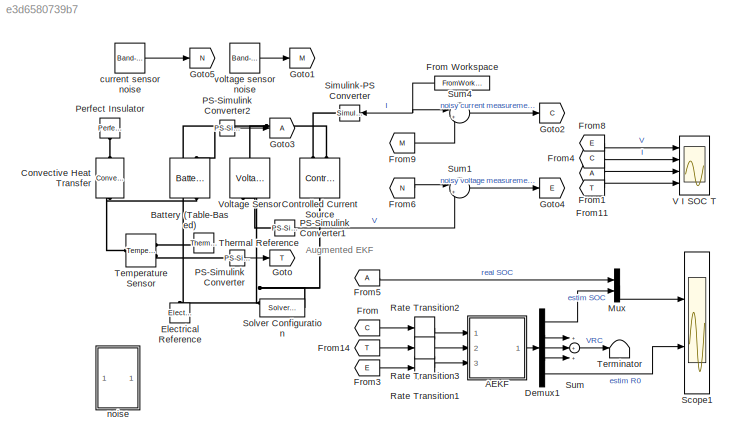
MODEL slx_e3d6580739b7
KIND model
CONFIG AbsTol = 1e-3
CONFIG EnableMultiTasking = on
CONFIG FixedStep = auto
CONFIG MaxStep = auto
CONFIG MinStep = auto
CONFIG PreLoadFcn = sohEstimation_ini
CONFIG RelTol = 1e-3
CONFIG SampleTimeConstraint = Unconstrained
CONFIG Solver = VariableStepAuto
CONFIG SolverName = VariableStepAuto
CONFIG StartTime = 0.0
CONFIG StopTime = tcyc(end)
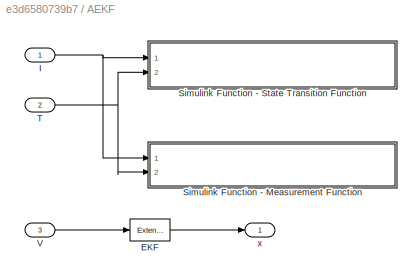
BLOCK [SubSystem] AEKF
  Ports = [3, 1]
  RequestExecContextInheritance = off
BLOCK [Reference] AEKF/EKF  REF=sharedTrackingLibrary/Extended Kalman Filter
  Ports = [1, 1]
  SourceBlock = sharedTrackingLibrary/Extended Kalman Filter
  SourceProductName = The database <userpath>\AppData\Roaming\MathWorks\MATLAB\R2017b\slblocks_master.db is locked, or a table in the database is locked. (database is locked)
  SourceType = Extended Kalman Filter
BLOCK [Inport] AEKF/I
  IconDisplay = Port number
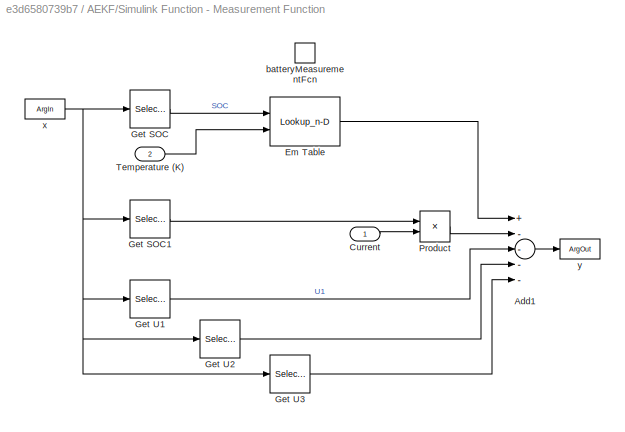
BLOCK [SubSystem] AEKF/Simulink Function - Measurement Function
  Ports = [2, 0, 0, 1]
  RequestExecContextInheritance = off
  TreatAsAtomicUnit = on
BLOCK [Sum] AEKF/Simulink Function - Measurement Function/Add1
  InputSameDT = off
  Inputs = +----
  OutDataTypeStr = Inherit: Inherit via internal rule
  Ports = [5, 1]
  SaturateOnIntegerOverflow = off
BLOCK [Inport] AEKF/Simulink Function - Measurement Function/Current
  IconDisplay = Port number
BLOCK [Lookup_n-D] AEKF/Simulink Function - Measurement Function/Em Table
  BreakpointsForDimension1 = Battery.SOC_LUT
  BreakpointsForDimension2 = Battery.Temperature_LUT
  InternalRulePriority = Speed
  Ports = [2, 1]
  RndMeth = Simplest
  Table = Battery.Em_LUT
BLOCK [Selector] AEKF/Simulink Function - Measurement Function/Get SOC
  IndexOptions = Index vector (dialog)
  Indices = [1]
  InputPortWidth = 5
  OutputSizes = 1
  Ports = [1, 1]
BLOCK [Selector] AEKF/Simulink Function - Measurement Function/Get SOC1
  IndexOptions = Index vector (dialog)
  Indices = [5]
  InputPortWidth = 5
  OutputSizes = 1
  Ports = [1, 1]
BLOCK [Selector] AEKF/Simulink Function - Measurement Function/Get U1
  IndexOptions = Index vector (dialog)
  Indices = 2
  InputPortWidth = 5
  OutputSizes = 1
  Ports = [1, 1]
BLOCK [Selector] AEKF/Simulink Function - Measurement Function/Get U2
  IndexOptions = Index vector (dialog)
  Indices = 3
  InputPortWidth = 5
  OutputSizes = 1
  Ports = [1, 1]
BLOCK [Selector] AEKF/Simulink Function - Measurement Function/Get U3
  IndexOptions = Index vector (dialog)
  Indices = 4
  InputPortWidth = 5
  OutputSizes = 1
  Ports = [1, 1]
BLOCK [Product] AEKF/Simulink Function - Measurement Function/Product
  InputSameDT = off
  OutDataTypeStr = Inherit: Inherit via internal rule
  Ports = [2, 1]
  RndMeth = Floor
  SaturateOnIntegerOverflow = off
BLOCK [Inport] AEKF/Simulink Function - Measurement Function/Temperature (K)
  IconDisplay = Port number
  Port = 2
BLOCK [TriggerPort] AEKF/Simulink Function - Measurement Function/batteryMeasurementFcn
  FunctionName = batteryMeasurementFcn
  IsSimulinkFunction = on
  Ports = []
  StatesWhenEnabling = held
  TriggerType = function-call
  VariantControl = Variant
BLOCK [ArgIn] AEKF/Simulink Function - Measurement Function/x
  ArgumentName = x
  DisableCoverage = on
  PortDimensions = 5
BLOCK [ArgOut] AEKF/Simulink Function - Measurement Function/y
  ArgumentName = y
  DisableCoverage = on
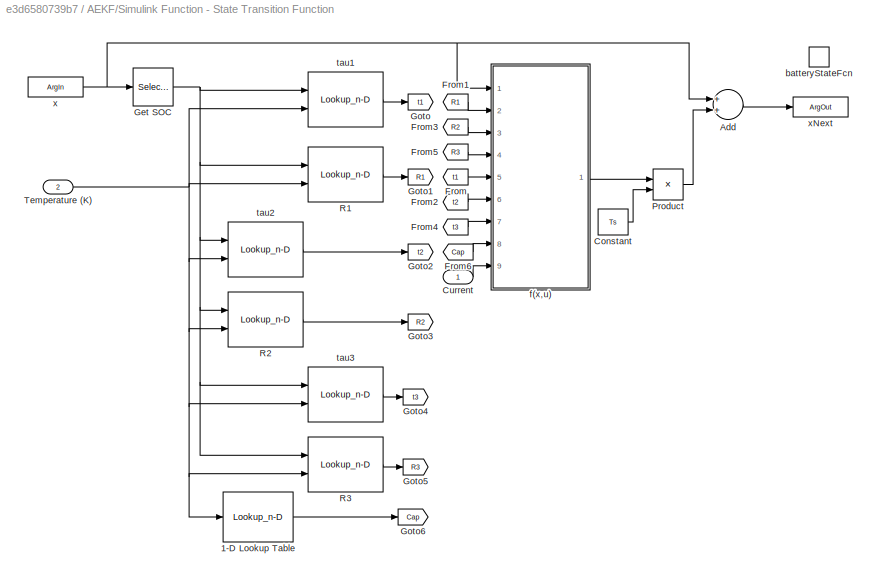
BLOCK [SubSystem] AEKF/Simulink Function - State Transition Function
  Ports = [2, 0, 0, 1]
  RequestExecContextInheritance = off
  TreatAsAtomicUnit = on
BLOCK [Lookup_n-D] AEKF/Simulink Function - State Transition Function/1-D Lookup Table
  BreakpointsForDimension1 = Battery.Temperature_LUT
  InternalRulePriority = Speed
  NumberOfTableDimensions = 1
  Ports = [1, 1]
  RndMeth = Simplest
  Table = Battery.Capacity_LUT
BLOCK [Sum] AEKF/Simulink Function - State Transition Function/Add
  InputSameDT = off
  OutDataTypeStr = Inherit: Inherit via internal rule
  Ports = [2, 1]
  SaturateOnIntegerOverflow = off
BLOCK [Constant] AEKF/Simulink Function - State Transition Function/Constant
  Value = Ts
BLOCK [Inport] AEKF/Simulink Function - State Transition Function/Current
  IconDisplay = Port number
BLOCK [From] AEKF/Simulink Function - State Transition Function/From
  GotoTag = t1
BLOCK [From] AEKF/Simulink Function - State Transition Function/From1
  GotoTag = R1
BLOCK [From] AEKF/Simulink Function - State Transition Function/From2
  GotoTag = t2
BLOCK [From] AEKF/Simulink Function - State Transition Function/From3
  GotoTag = R2
BLOCK [From] AEKF/Simulink Function - State Transition Function/From4
  GotoTag = t3
BLOCK [From] AEKF/Simulink Function - State Transition Function/From5
  GotoTag = R3
BLOCK [From] AEKF/Simulink Function - State Transition Function/From6
  GotoTag = Cap
BLOCK [Selector] AEKF/Simulink Function - State Transition Function/Get SOC
  IndexOptions = Index vector (dialog)
  Indices = 1
  InputPortWidth = 5
  OutputSizes = 1
  Ports = [1, 1]
BLOCK [Goto] AEKF/Simulink Function - State Transition Function/Goto
  GotoTag = t1
BLOCK [Goto] AEKF/Simulink Function - State Transition Function/Goto1
  GotoTag = R1
BLOCK [Goto] AEKF/Simulink Function - State Transition Function/Goto2
  GotoTag = t2
BLOCK [Goto] AEKF/Simulink Function - State Transition Function/Goto3
  GotoTag = R2
BLOCK [Goto] AEKF/Simulink Function - State Transition Function/Goto4
  GotoTag = t3
BLOCK [Goto] AEKF/Simulink Function - State Transition Function/Goto5
  GotoTag = R3
BLOCK [Goto] AEKF/Simulink Function - State Transition Function/Goto6
  GotoTag = Cap
BLOCK [Product] AEKF/Simulink Function - State Transition Function/Product
  InputSameDT = off
  OutDataTypeStr = Inherit: Inherit via internal rule
  Ports = [2, 1]
  RndMeth = Floor
  SaturateOnIntegerOverflow = off
BLOCK [Lookup_n-D] AEKF/Simulink Function - State Transition Function/R1
  BreakpointsForDimension1 = Battery.SOC_LUT
  BreakpointsForDimension2 = Battery.Temperature_LUT
  InternalRulePriority = Speed
  Ports = [2, 1]
  RndMeth = Simplest
  Table = Battery.R1_LUT
BLOCK [Lookup_n-D] AEKF/Simulink Function - State Transition Function/R2
  BreakpointsForDimension1 = Battery.SOC_LUT
  BreakpointsForDimension2 = Battery.Temperature_LUT
  InternalRulePriority = Speed
  Ports = [2, 1]
  RndMeth = Simplest
  Table = Battery.R2_LUT
BLOCK [Lookup_n-D] AEKF/Simulink Function - State Transition Function/R3
  BreakpointsForDimension1 = Battery.SOC_LUT
  BreakpointsForDimension2 = Battery.Temperature_LUT
  InternalRulePriority = Speed
  Ports = [2, 1]
  RndMeth = Simplest
  Table = Battery.R3_LUT
BLOCK [Inport] AEKF/Simulink Function - State Transition Function/Temperature (K)
  IconDisplay = Port number
  Port = 2
BLOCK [TriggerPort] AEKF/Simulink Function - State Transition Function/batteryStateFcn
  FunctionName = batteryStateFcn
  IsSimulinkFunction = on
  Ports = []
  StatesWhenEnabling = held
  TriggerType = function-call
  VariantControl = Variant
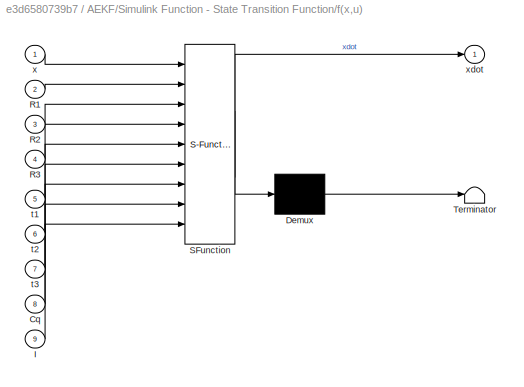
BLOCK [SubSystem] AEKF/Simulink Function - State Transition Function/f(x,u)
  ErrorFcn = Stateflow.Translate.translate
  PermitHierarchicalResolution = ExplicitOnly
  Ports = [9, 1]
  RequestExecContextInheritance = off
  SFBlockType = MATLAB Function
  TreatAsAtomicUnit = on
BLOCK [Demux] AEKF/Simulink Function - State Transition Function/f(x,u)/ Demux 
  Outputs = 1
  Ports = [1, 1]
BLOCK [S-Function] AEKF/Simulink Function - State Transition Function/f(x,u)/ SFunction 
  EnableBusSupport = on
  FunctionName = sf_sfun
  PortCounts = [9 2]
  Ports = [9, 2]
  SFcnIsStateOwnerBlock = off
  SFunctionDeploymentMode = off
  Tag = Stateflow S-Function 3
BLOCK [Terminator] AEKF/Simulink Function - State Transition Function/f(x,u)/ Terminator 
BLOCK [Inport] AEKF/Simulink Function - State Transition Function/f(x,u)/Cq
  IconDisplay = Port number
  Port = 8
BLOCK [Inport] AEKF/Simulink Function - State Transition Function/f(x,u)/I
  IconDisplay = Port number
  Port = 9
BLOCK [Inport] AEKF/Simulink Function - State Transition Function/f(x,u)/R1
  IconDisplay = Port number
  Port = 2
BLOCK [Inport] AEKF/Simulink Function - State Transition Function/f(x,u)/R2
  IconDisplay = Port number
  Port = 3
BLOCK [Inport] AEKF/Simulink Function - State Transition Function/f(x,u)/R3
  IconDisplay = Port number
  Port = 4
BLOCK [Inport] AEKF/Simulink Function - State Transition Function/f(x,u)/t1
  IconDisplay = Port number
  Port = 5
BLOCK [Inport] AEKF/Simulink Function - State Transition Function/f(x,u)/t2
  IconDisplay = Port number
  Port = 6
BLOCK [Inport] AEKF/Simulink Function - State Transition Function/f(x,u)/t3
  IconDisplay = Port number
  Port = 7
BLOCK [Inport] AEKF/Simulink Function - State Transition Function/f(x,u)/x
  IconDisplay = Port number
BLOCK [Outport] AEKF/Simulink Function - State Transition Function/f(x,u)/xdot
  IconDisplay = Port number
  VectorParamsAs1DForOutWhenUnconnected = off
BLOCK [Lookup_n-D] AEKF/Simulink Function - State Transition Function/tau1
  BreakpointsForDimension1 = Battery.SOC_LUT
  BreakpointsForDimension2 = Battery.Temperature_LUT
  InternalRulePriority = Speed
  Ports = [2, 1]
  RndMeth = Simplest
  Table = Battery.t1_LUT
BLOCK [Lookup_n-D] AEKF/Simulink Function - State Transition Function/tau2
  BreakpointsForDimension1 = Battery.SOC_LUT
  BreakpointsForDimension2 = Battery.Temperature_LUT
  InternalRulePriority = Speed
  Ports = [2, 1]
  RndMeth = Simplest
  Table = Battery.t2_LUT
BLOCK [Lookup_n-D] AEKF/Simulink Function - State Transition Function/tau3
  BreakpointsForDimension1 = Battery.SOC_LUT
  BreakpointsForDimension2 = Battery.Temperature_LUT
  InternalRulePriority = Speed
  Ports = [2, 1]
  RndMeth = Simplest
  Table = Battery.t3_LUT
BLOCK [ArgIn] AEKF/Simulink Function - State Transition Function/x
  ArgumentName = x
  DisableCoverage = on
  PortDimensions = 5
BLOCK [ArgOut] AEKF/Simulink Function - State Transition Function/xNext
  ArgumentName = xNext
  DisableCoverage = on
  PortDimensions = 5
BLOCK [Inport] AEKF/T
  IconDisplay = Port number
  Port = 2
BLOCK [Inport] AEKF/V
  IconDisplay = Port number
  Port = 3
BLOCK [Outport] AEKF/x
  IconDisplay = Port number
  VectorParamsAs1DForOutWhenUnconnected = off
BLOCK [Reference] Battery (Table-Based)  REF=ee_lib/Sources/Battery
(Table-Based)
  Ports = [0, 0, 0, 0, 0, 2, 2]
  SourceBlock = ee_lib/Sources/Battery\n(Table-Based)
  SourceProductBaseCode = PS
  SourceProductName = Simscape Electrical
  SourceType = Battery\n(Table-Based)
BLOCK [Reference] Controlled Current Source  REF=fl_lib/Electrical/Electrical Sources/Controlled Current
Source
  Ports = [0, 0, 0, 0, 0, 1, 2]
  SourceBlock = fl_lib/Electrical/Electrical Sources/Controlled Current\nSource
  SourceProductBaseCode = SS
  SourceProductName = Simscape
  SourceType = Controlled Current\nSource
BLOCK [Reference] Convective Heat Transfer  REF=fl_lib/Thermal/Thermal Elements/Convective Heat
Transfer
  Ports = [0, 0, 0, 0, 0, 1, 1]
  SourceBlock = fl_lib/Thermal/Thermal Elements/Convective Heat\nTransfer
  SourceProductBaseCode = SS
  SourceProductName = Simscape
  SourceType = Convective Heat\nTransfer
BLOCK [Demux] Demux1
  DisplayOption = bar
  Outputs = 5
  Ports = [1, 5]
BLOCK [Reference] Electrical Reference  REF=fl_lib/Electrical/Electrical Elements/Electrical Reference
  Ports = [0, 0, 0, 0, 0, 1]
  SourceBlock = fl_lib/Electrical/Electrical Elements/Electrical Reference
  SourceProductName = Foundation Library
  SourceType = Electrical Reference
BLOCK [From] From
  GotoTag = C
  TagVisibility = global
BLOCK [FromWorkspace] From Workspace
  SampleTime = 0
  VariableName = [tcyc Icyc]
  ZeroCross = on
BLOCK [From] From1
  TagVisibility = global
BLOCK [From] From11
  GotoTag = T
BLOCK [From] From14
  GotoTag = T
BLOCK [From] From3
  GotoTag = E
  TagVisibility = global
BLOCK [From] From4
  GotoTag = C
  TagVisibility = global
BLOCK [From] From5
  TagVisibility = global
BLOCK [From] From6
  GotoTag = N
  TagVisibility = global
BLOCK [From] From8
  GotoTag = E
  TagVisibility = global
BLOCK [From] From9
  GotoTag = M
  TagVisibility = global
BLOCK [Goto] Goto
  GotoTag = T
BLOCK [Goto] Goto1
  GotoTag = M
  TagVisibility = global
BLOCK [Goto] Goto2
  GotoTag = C
  TagVisibility = global
BLOCK [Goto] Goto3
  TagVisibility = global
BLOCK [Goto] Goto4
  GotoTag = E
  TagVisibility = global
BLOCK [Goto] Goto5
  GotoTag = N
  TagVisibility = global
BLOCK [Mux] Mux
  DisplayOption = bar
  Inputs = 2
  Ports = [2, 1]
BLOCK [Reference] PS-Simulink Converter  REF=nesl_utility/PS-Simulink
Converter
  Ports = [0, 1, 0, 0, 0, 1]
  SourceBlock = nesl_utility/PS-Simulink\nConverter
  SourceProductBaseCode = SS
  SourceProductName = Simscape
  SourceType = PS-Simulink\nConverter
BLOCK [Reference] PS-Simulink Converter1  REF=nesl_utility/PS-Simulink
Converter
  Ports = [0, 1, 0, 0, 0, 1]
  SourceBlock = nesl_utility/PS-Simulink\nConverter
  SourceProductBaseCode = SS
  SourceProductName = Simscape
  SourceType = PS-Simulink\nConverter
BLOCK [Reference] PS-Simulink Converter2  REF=nesl_utility/PS-Simulink
Converter
  Ports = [0, 1, 0, 0, 0, 1]
  SourceBlock = nesl_utility/PS-Simulink\nConverter
  SourceProductBaseCode = SS
  SourceProductName = Simscape
  SourceType = PS-Simulink\nConverter
BLOCK [Reference] Perfect Insulator  REF=fl_lib/Thermal/Thermal Elements/Perfect Insulator
  Ports = [0, 0, 0, 0, 0, 1]
  SourceBlock = fl_lib/Thermal/Thermal Elements/Perfect Insulator
  SourceProductBaseCode = SS
  SourceProductName = Simscape
  SourceType = Perfect Insulator
BLOCK [RateTransition] Rate Transition1
BLOCK [RateTransition] Rate Transition2
BLOCK [RateTransition] Rate Transition3
BLOCK [Scope] Scope1
  Floating = off
  NumInputPorts = 2
  Ports = [2]
  ScopeSpecificationString = Simulink.scopes.TimeScopeBlockCfg('CurrentConfiguration', extmgr.ConfigurationSet(extmgr.Configuration('Core','General UI',true),extmgr.Configuration('Core','Source UI',true),extmgr.Configuration('Sources','WiredSimulink',true,'DataLoggingVariableName','ScopeData1'),extmgr.Configuration('Visuals','Time Domain',true,'SerializedDisplays',{struct('MinYLimReal','0.42693','MaxYLimReal','0.61743','YLabe...<+2120ch>
BLOCK [Reference] Simulink-PS Converter  REF=nesl_utility/Simulink-PS
Converter
  Ports = [1, 0, 0, 0, 0, 0, 1]
  SourceBlock = nesl_utility/Simulink-PS\nConverter
  SourceProductBaseCode = SS
  SourceProductName = Simscape
  SourceType = Simulink-PS\nConverter
BLOCK [Reference] Solver Configuration  REF=nesl_utility/Solver
Configuration
  Ports = [0, 0, 0, 0, 0, 0, 1]
  SourceBlock = nesl_utility/Solver\nConfiguration
  SourceProductBaseCode = SS
  SourceProductName = Simscape
  SourceType = Solver\nConfiguration
BLOCK [Sum] Sum
  InputSameDT = off
  Inputs = +++
  OutDataTypeStr = Inherit: Inherit via internal rule
  Ports = [3, 1]
  SaturateOnIntegerOverflow = off
BLOCK [Sum] Sum1
  IconShape = round
  InputSameDT = off
  Inputs = |++
  OutDataTypeStr = Inherit: Inherit via internal rule
  Ports = [2, 1]
  SaturateOnIntegerOverflow = off
BLOCK [Sum] Sum4
  IconShape = round
  InputSameDT = off
  Inputs = |++
  OutDataTypeStr = Inherit: Inherit via internal rule
  Ports = [2, 1]
  SaturateOnIntegerOverflow = off
BLOCK [Reference] Temperature Sensor  REF=fl_lib/Thermal/Thermal Sensors/Temperature Sensor
  Ports = [0, 0, 0, 0, 0, 1, 2]
  SourceBlock = fl_lib/Thermal/Thermal Sensors/Temperature Sensor
  SourceProductBaseCode = SS
  SourceProductName = Simscape
  SourceType = Temperature Sensor
BLOCK [Terminator] Terminator
BLOCK [Reference] Thermal Reference  REF=fl_lib/Thermal/Thermal Elements/Thermal Reference
  Ports = [0, 0, 0, 0, 0, 1]
  SourceBlock = fl_lib/Thermal/Thermal Elements/Thermal Reference
  SourceProductBaseCode = SS
  SourceProductName = Simscape
  SourceType = Thermal Reference
BLOCK [Scope] V I SOC T
  Floating = off
  NumInputPorts = 4
  Ports = [4]
  ScopeSpecificationString = Simulink.scopes.TimeScopeBlockCfg('CurrentConfiguration', extmgr.ConfigurationSet(extmgr.Configuration('Core','General UI',true,'FigureColor',[1 1 1]),extmgr.Configuration('Core','Source UI',true),extmgr.Configuration('Sources','WiredSimulink',true,'DataLoggingSaveFormat','Array','DataLoggingDecimation','1','DataLoggingDecimateData',true,'DataLoggingVariableName','ScopeData1'),extmgr.Configuration...<+4785ch>
BLOCK [Reference] Voltage Sensor  REF=fl_lib/Electrical/Electrical Sensors/Voltage Sensor
  Ports = [0, 0, 0, 0, 0, 1, 2]
  SourceBlock = fl_lib/Electrical/Electrical Sensors/Voltage Sensor
  SourceProductBaseCode = SS
  SourceProductName = Simscape
  SourceType = Voltage Sensor
BLOCK [Reference] current sensor noise  REF=simulink/Sources/Band-Limited
White Noise
  Ports = [0, 1]
  SourceBlock = simulink/Sources/Band-Limited\nWhite Noise
  SourceProductBaseCode = SL
  SourceProductName = Simulink
  SourceType = Band-Limited White Noise.
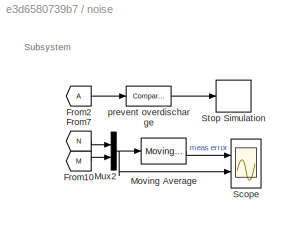
BLOCK [SubSystem] noise
  Ports = []
  RequestExecContextInheritance = off
BLOCK [From] noise/From10
  GotoTag = M
  TagVisibility = global
BLOCK [From] noise/From2
  TagVisibility = global
BLOCK [From] noise/From7
  GotoTag = N
  TagVisibility = global
BLOCK [Reference] noise/Moving Average  REF=dspstat3/Moving
Average
  Ports = [1, 1]
  SourceBlock = dspstat3/Moving\nAverage
  SourceProductBaseCode = DS
  SourceProductName = DSP System Toolbox
  SourceType = dsp.simulink.MovingAverage
BLOCK [Mux] noise/Mux2
  DisplayOption = bar
  Inputs = 2
  Ports = [2, 1]
BLOCK [Scope] noise/Scope
  Floating = off
  NumInputPorts = 2
  Ports = [2]
  ScopeSpecificationString = Simulink.scopes.TimeScopeBlockCfg('CurrentConfiguration', extmgr.ConfigurationSet(extmgr.Configuration('Core','General UI',true),extmgr.Configuration('Core','Source UI',true),extmgr.Configuration('Sources','WiredSimulink',true,'DataLoggingVariableName','ScopeData2'),extmgr.Configuration('Visuals','Time Domain',true,'SerializedDisplays',{struct('MinYLimReal','-0.00131','MaxYLimReal','0.00139','YLab...<+2097ch>
BLOCK [Stop] noise/Stop Simulation
BLOCK [Reference] noise/prevent overdischarge  REF=simulink/Logic and Bit
Operations/Compare
To Constant
  Ports = [1, 1]
  SourceBlock = simulink/Logic and Bit\nOperations/Compare\nTo Constant
  SourceProductBaseCode = SL
  SourceProductName = Simulink
  SourceType = Compare To Constant
BLOCK [Reference] voltage sensor noise  REF=simulink/Sources/Band-Limited
White Noise
  Ports = [0, 1]
  SourceBlock = simulink/Sources/Band-Limited\nWhite Noise
  SourceProductBaseCode = SL
  SourceProductName = Simulink
  SourceType = Band-Limited White Noise.
ANNOTATION (root): Augmented EKF
ANNOTATION noise: Subsystem
LINE AEKF/EKF:1 -> AEKF/x:1
NET AEKF/I:1 -> AEKF/Simulink Function - Measurement Function:1, AEKF/Simulink Function - State Transition Function:1
LINE AEKF/Simulink Function - Measurement Function/Add1:1 -> AEKF/Simulink Function - Measurement Function/y:1
LINE AEKF/Simulink Function - Measurement Function/Current:1 -> AEKF/Simulink Function - Measurement Function/Product:2
LINE AEKF/Simulink Function - Measurement Function/Em Table:1 -> AEKF/Simulink Function - Measurement Function/Add1:1
LINE AEKF/Simulink Function - Measurement Function/Get SOC1:1 -> AEKF/Simulink Function - Measurement Function/Product:1
LINE AEKF/Simulink Function - Measurement Function/Get SOC:1 -> AEKF/Simulink Function - Measurement Function/Em Table:1
LINE AEKF/Simulink Function - Measurement Function/Get U1:1 -> AEKF/Simulink Function - Measurement Function/Add1:3
LINE AEKF/Simulink Function - Measurement Function/Get U2:1 -> AEKF/Simulink Function - Measurement Function/Add1:4
LINE AEKF/Simulink Function - Measurement Function/Get U3:1 -> AEKF/Simulink Function - Measurement Function/Add1:5
LINE AEKF/Simulink Function - Measurement Function/Product:1 -> AEKF/Simulink Function - Measurement Function/Add1:2
LINE AEKF/Simulink Function - Measurement Function/Temperature (K):1 -> AEKF/Simulink Function - Measurement Function/Em Table:2
NET AEKF/Simulink Function - Measurement Function/x:1 -> AEKF/Simulink Function - Measurement Function/Get SOC1:1, AEKF/Simulink Function - Measurement Function/Get SOC:1, AEKF/Simulink Function - Measurement Function/Get U1:1, AEKF/Simulink Function - Measurement Function/Get U2:1, AEKF/Simulink Function - Measurement Function/Get U3:1
LINE AEKF/Simulink Function - State Transition Function/1-D Lookup Table:1 -> AEKF/Simulink Function - State Transition Function/Goto6:1
LINE AEKF/Simulink Function - State Transition Function/Add:1 -> AEKF/Simulink Function - State Transition Function/xNext:1
LINE AEKF/Simulink Function - State Transition Function/Constant:1 -> AEKF/Simulink Function - State Transition Function/Product:2
LINE AEKF/Simulink Function - State Transition Function/Current:1 -> AEKF/Simulink Function - State Transition Function/f(x,u):9
LINE AEKF/Simulink Function - State Transition Function/From1:1 -> AEKF/Simulink Function - State Transition Function/f(x,u):2
LINE AEKF/Simulink Function - State Transition Function/From2:1 -> AEKF/Simulink Function - State Transition Function/f(x,u):6
LINE AEKF/Simulink Function - State Transition Function/From3:1 -> AEKF/Simulink Function - State Transition Function/f(x,u):3
LINE AEKF/Simulink Function - State Transition Function/From4:1 -> AEKF/Simulink Function - State Transition Function/f(x,u):7
LINE AEKF/Simulink Function - State Transition Function/From5:1 -> AEKF/Simulink Function - State Transition Function/f(x,u):4
LINE AEKF/Simulink Function - State Transition Function/From6:1 -> AEKF/Simulink Function - State Transition Function/f(x,u):8
LINE AEKF/Simulink Function - State Transition Function/From:1 -> AEKF/Simulink Function - State Transition Function/f(x,u):5
NET AEKF/Simulink Function - State Transition Function/Get SOC:1 -> AEKF/Simulink Function - State Transition Function/R1:1, AEKF/Simulink Function - State Transition Function/R2:1, AEKF/Simulink Function - State Transition Function/R3:1, AEKF/Simulink Function - State Transition Function/tau1:1, AEKF/Simulink Function - State Transition Function/tau2:1, AEKF/Simulink Function - State Transition Function/tau3:1
LINE AEKF/Simulink Function - State Transition Function/Product:1 -> AEKF/Simulink Function - State Transition Function/Add:2
LINE AEKF/Simulink Function - State Transition Function/R1:1 -> AEKF/Simulink Function - State Transition Function/Goto1:1
LINE AEKF/Simulink Function - State Transition Function/R2:1 -> AEKF/Simulink Function - State Transition Function/Goto3:1
LINE AEKF/Simulink Function - State Transition Function/R3:1 -> AEKF/Simulink Function - State Transition Function/Goto5:1
NET AEKF/Simulink Function - State Transition Function/Temperature (K):1 -> AEKF/Simulink Function - State Transition Function/1-D Lookup Table:1, AEKF/Simulink Function - State Transition Function/R1:2, AEKF/Simulink Function - State Transition Function/R2:2, AEKF/Simulink Function - State Transition Function/R3:2, AEKF/Simulink Function - State Transition Function/tau1:2, AEKF/Simulink Function - State Transition Function/tau2:2, AEKF/Simulink Function - State Transition Function/tau3:2
LINE AEKF/Simulink Function - State Transition Function/f(x,u):1 -> AEKF/Simulink Function - State Transition Function/Product:1
LINE AEKF/Simulink Function - State Transition Function/tau1:1 -> AEKF/Simulink Function - State Transition Function/Goto:1
LINE AEKF/Simulink Function - State Transition Function/tau2:1 -> AEKF/Simulink Function - State Transition Function/Goto2:1
LINE AEKF/Simulink Function - State Transition Function/tau3:1 -> AEKF/Simulink Function - State Transition Function/Goto4:1
NET AEKF/Simulink Function - State Transition Function/x:1 -> AEKF/Simulink Function - State Transition Function/Add:1, AEKF/Simulink Function - State Transition Function/Get SOC:1, AEKF/Simulink Function - State Transition Function/f(x,u):1
NET AEKF/T:1 -> AEKF/Simulink Function - Measurement Function:2, AEKF/Simulink Function - State Transition Function:2
LINE AEKF/V:1 -> AEKF/EKF:1
LINE AEKF:1 -> Demux1:1
LINE Demux1:1 -> Mux:2
LINE Demux1:2 -> Sum:1
LINE Demux1:3 -> Sum:2
LINE Demux1:4 -> Sum:3
LINE Demux1:5 -> Scope1:2
NET From Workspace:1 -> Simulink-PS Converter:1, Sum4:1
LINE From11:1 -> V I SOC T:4
LINE From14:1 -> Rate Transition3:1
LINE From1:1 -> V I SOC T:3
LINE From3:1 -> Rate Transition1:1
LINE From4:1 -> V I SOC T:2
LINE From5:1 -> Mux:1
LINE From6:1 -> Sum1:1
LINE From8:1 -> V I SOC T:1
LINE From9:1 -> Sum4:2
LINE From:1 -> Rate Transition2:1
LINE Mux:1 -> Scope1:1
LINE PS-Simulink Converter1:1 -> Sum1:2
LINE PS-Simulink Converter2:1 -> Goto3:1
LINE PS-Simulink Converter:1 -> Goto:1
LINE Rate Transition1:1 -> AEKF:3
LINE Rate Transition2:1 -> AEKF:1
LINE Rate Transition3:1 -> AEKF:2
LINE Sum1:1 -> Goto4:1
LINE Sum4:1 -> Goto2:1
LINE Sum:1 -> Terminator:1
LINE current sensor noise:1 -> Goto5:1
LINE noise/From10:1 -> noise/Mux2:2
LINE noise/From2:1 -> noise/prevent overdischarge:1
LINE noise/From7:1 -> noise/Mux2:1
LINE noise/Moving Average:1 -> noise/Scope:1
NET noise/Mux2:1 -> noise/Moving Average:1, noise/Scope:2
LINE noise/prevent overdischarge:1 -> noise/Stop Simulation:1
LINE voltage sensor noise:1 -> Goto1:1
PNET net1: Battery (Table-Based):LConn1 -- Controlled Current Source:RConn2 -- Voltage Sensor:LConn1
PLINE Battery (Table-Based):LConn2 -- PS-Simulink Converter2:LConn1
PNET net2: Battery (Table-Based):RConn1 -- Controlled Current Source:LConn1 -- Electrical Reference:LConn1 -- Solver Configuration:RConn1 -- Voltage Sensor:RConn2
PNET net3: Battery (Table-Based):RConn2 -- Convective Heat Transfer:LConn1 -- Temperature Sensor:LConn1
PLINE Controlled Current Source:RConn1 -- Simulink-PS Converter:RConn1
PLINE Convective Heat Transfer:RConn1 -- Perfect Insulator:LConn1
PLINE PS-Simulink Converter1:LConn1 -- Voltage Sensor:RConn1
PLINE PS-Simulink Converter:LConn1 -- Temperature Sensor:RConn2
PLINE Temperature Sensor:RConn1 -- Thermal Reference:LConn1
note: NET lines group one-source signal fan-out (src -> all destinations, sorted); 1:1 wires keep LINE; PNET lines group multi-terminal physical nets as a canonical sorted terminal list (undirected conserving connections); 2-terminal nets keep the pairwise PLINE form
CHART AEKF/Simulink Function - State Transition Function/f(x,u) states=1 transitions=1
  STATE_LABEL 'eML_blk_kernel()'
  STATE_LABEL 'SCRIPT:\nfunction xdot = fx(x,R1,R2,R3,t1,t2,t3,Cq,I)\nxdot = zeros(size(x));\nU1 = x(2);\nU2 = x(3);\nU3 = x(4);\nxdot(1) = -I/(3600*Cq);\nxdot(2) = -1/t1*U1 + I/(t1/R1);\nxdot(3) = -1/t2*U2 + I/(t2/R2);\nxdot(4) = -1/t3*U3 + I/(t3/R3);\nxdot(5) = 0; \n\n% x1 = SOC\n% x2, x3, x4 = U1, U2, U3\n% x5 = R0'
